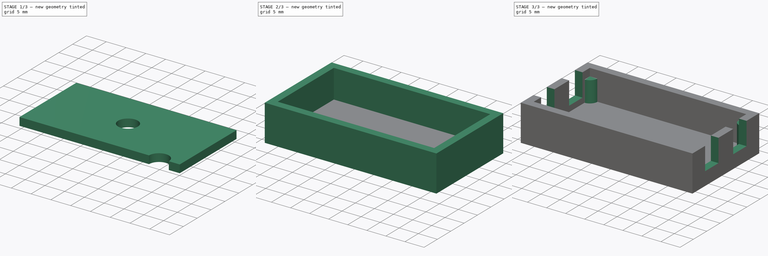
[diagram: build sequence overview — one tinted view per stage of 3, left to right]
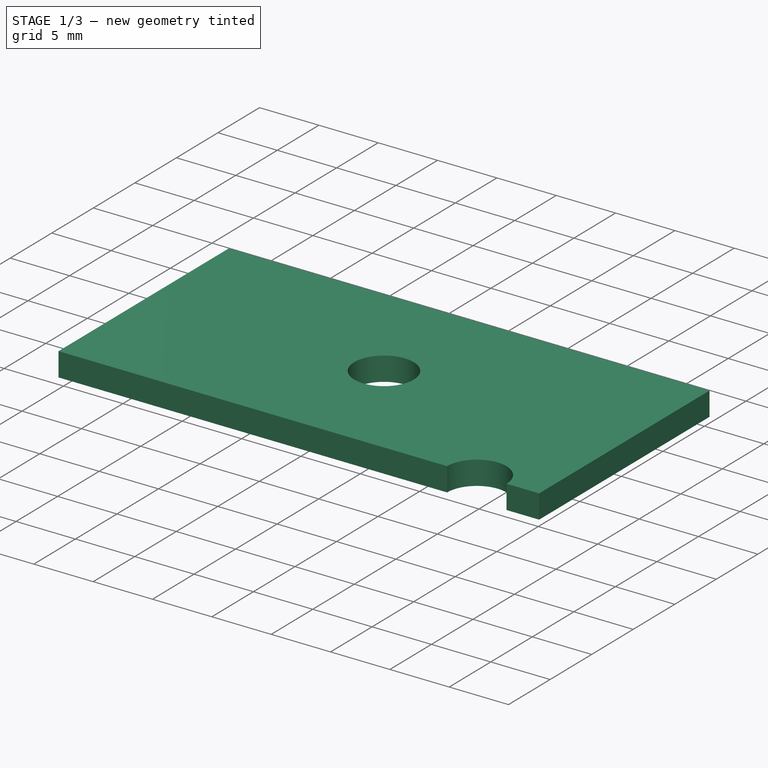
[diagram: stage 1 of 3 — iso view after this stage's code; geometry added in this stage tinted green]
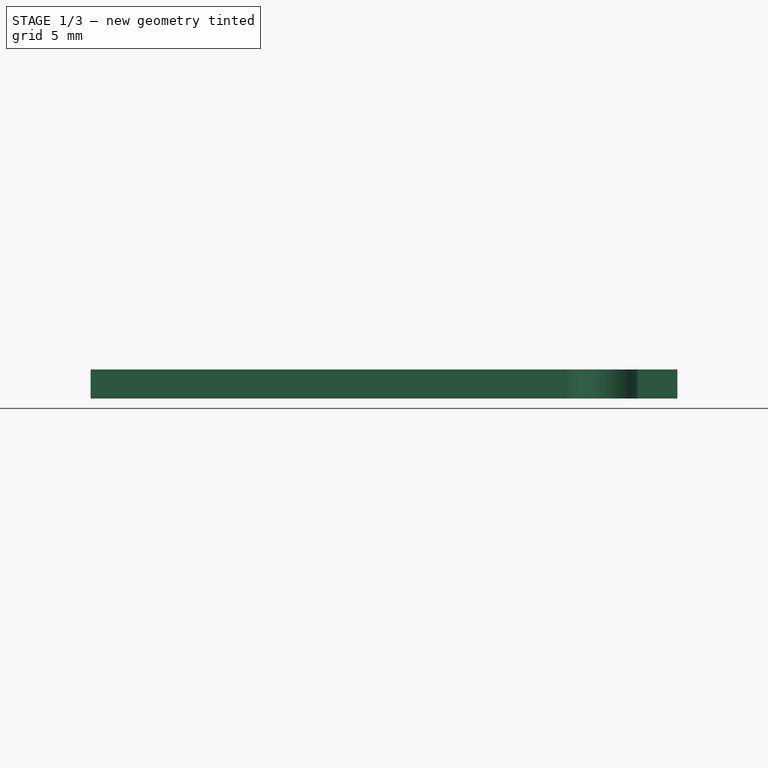
[diagram: stage 1 of 3 — front view after this stage's code; geometry added in this stage tinted green]
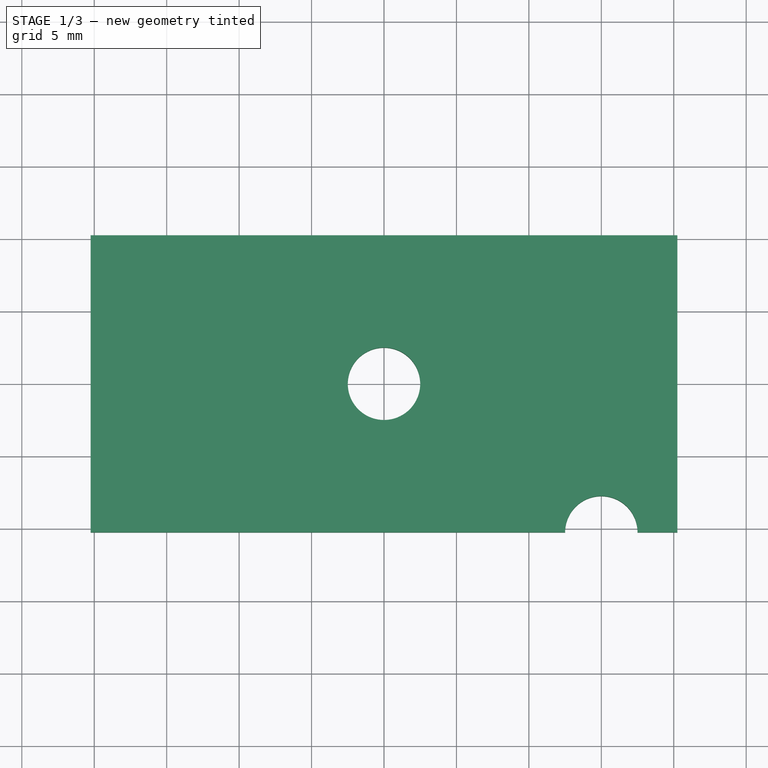
[diagram: stage 1 of 3 — top view after this stage's code; geometry added in this stage tinted green]
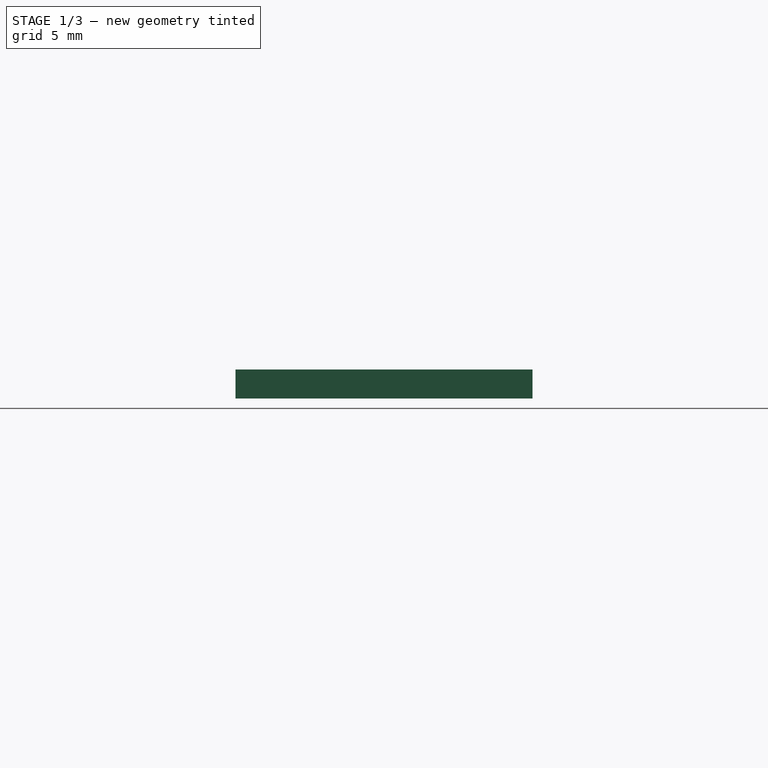
[diagram: stage 1 of 3 — right view after this stage's code; geometry added in this stage tinted green]
FCSTD DOCUMENT  (FreeCAD 0.20R29603 (Git))
Label: frame-circuit
License: All rights reserved
LicenseURL: http://en.wikipedia.org/wiki/All_rights_reserved
objects: Sketcher::SketchObject×7, PartDesign::Pocket×4, PartDesign::Pad×3, PartDesign::Body×2
note: 23 computed .brp shape members not serialized (recipe doc carries the construction recipe); baked Part::Feature solids carry a one-line shape summary decoded from their .brp

FEATURE [PartDesign::Body] Body
  Group = -> [Sketch,Pad,Sketch001,Pocket,Sketch002,Pocket001,Sketch003,Pocket002,Sketch004,Pad001]
  Origin = -> Origin
  Tip = -> Pad001
FEATURE [Sketcher::SketchObject] Sketch005
  FullyConstrained = true
  MapMode = 5
  Support = -> [XY_Plane001]
  sketch-geometry (6):
    g0: LineSegment StartX=-20.25 StartY=10.25 StartZ=0 EndX=20.25 EndY=10.25 EndZ=0
    g1: LineSegment StartX=20.25 StartY=10.25 StartZ=0 EndX=20.25 EndY=-10.25 EndZ=0
    g2: LineSegment StartX=20.25 StartY=-10.25 StartZ=0 EndX=17.5 EndY=-10.25 EndZ=0
    g3: LineSegment StartX=-20.25 StartY=-10.25 StartZ=0 EndX=-20.25 EndY=10.25 EndZ=0
    g4: ArcOfCircle CenterX=15 CenterY=-10.25 CenterZ=0 NormalX=0 NormalY=0 NormalZ=1 AngleXU=0 Radius=2.5 StartAngle=2.3e-15 EndAngle=3.14159
    g5: LineSegment StartX=12.5 StartY=-10.25 StartZ=0 EndX=-20.25 EndY=-10.25 EndZ=0
  constraints (18):
    c: Coincident(g0,g1)
    c: Coincident(g1,g2)
    c: Coincident(g5,g3)
    c: Coincident(g3,g0)
    c: Horizontal(g0)
    c: Horizontal(g2)
    c: Vertical(g1)
    c: Vertical(g3)
    c: Symmetric(g0,g1,g-1)
    c: DistanceY(g5,g0) = 20.5
    c: DistanceX(g0,g0) = 40.5
    c: PointOnObject(g4,g2)
    c: Diameter(g4) = 5
    c: DistanceX(g4,g1) = 2.75
    c: Coincident(g2,g4)
    c: Coincident(g5,g4)
    c: Horizontal(g4,g2)
    c: Horizontal(g3,g4)
FEATURE [PartDesign::Pad] Pad002
  Direction = (0,0,1)
  Length = 2
  Length2 = 10
  Profile = -> Sketch005
  ReferenceAxis = -> Sketch005 [N_Axis]
  Type = 0
FEATURE [Sketcher::SketchObject] Sketch006
  FullyConstrained = true
  MapMode = 5
  Placement = pos=(0,0,2) rot=(0,0,1;0rad)
  Support = -> [Pad002]
  sketch-geometry (1):
    g0: Circle CenterX=0 CenterY=0 CenterZ=0 NormalX=0 NormalY=0 NormalZ=1 AngleXU=0 Radius=2.5
  constraints (2):
    c: Coincident(g0,g-1)
    c: Diameter(g0) = 5
FEATURE [PartDesign::Pocket] Pocket003
  BaseFeature = -> Pad002
  Direction = (0,0,-1)
  Length = 5
  Length2 = 5
  Profile = -> Sketch006
  ReferenceAxis = -> Sketch006 [N_Axis]
  Type = 1
FEATURE [PartDesign::Body] Body001
  Group = -> [Sketch005,Pad002,Sketch006,Pocket003]
  Origin = -> Origin001
  Tip = -> Pocket003
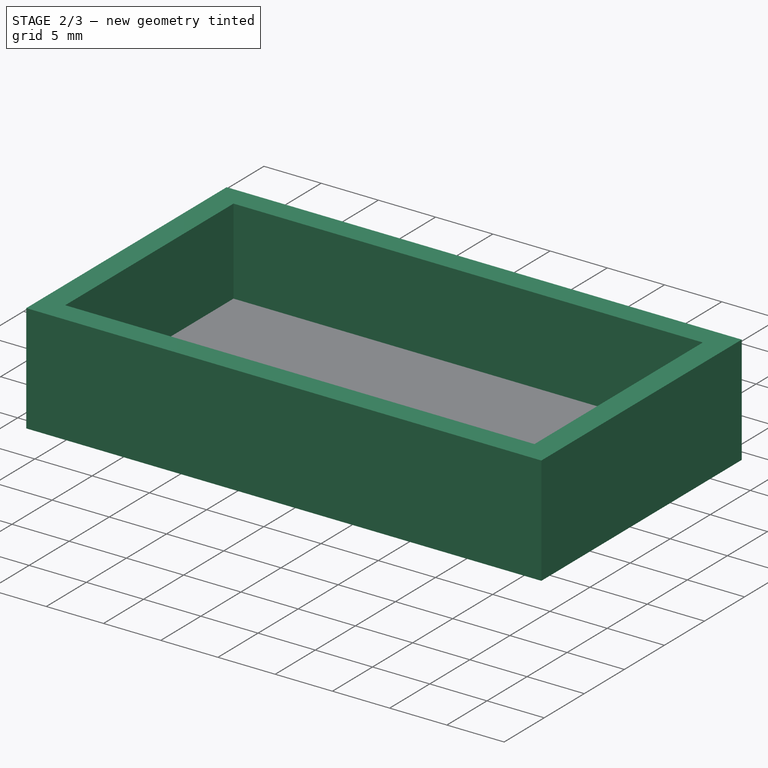
[diagram: stage 2 of 3 — iso view after this stage's code; geometry added in this stage tinted green]
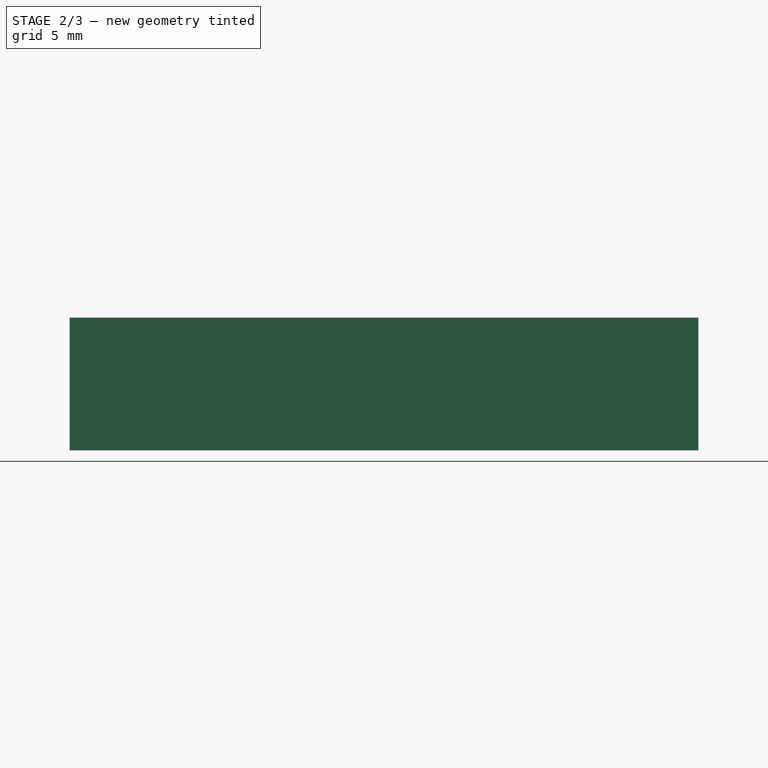
[diagram: stage 2 of 3 — front view after this stage's code; geometry added in this stage tinted green]
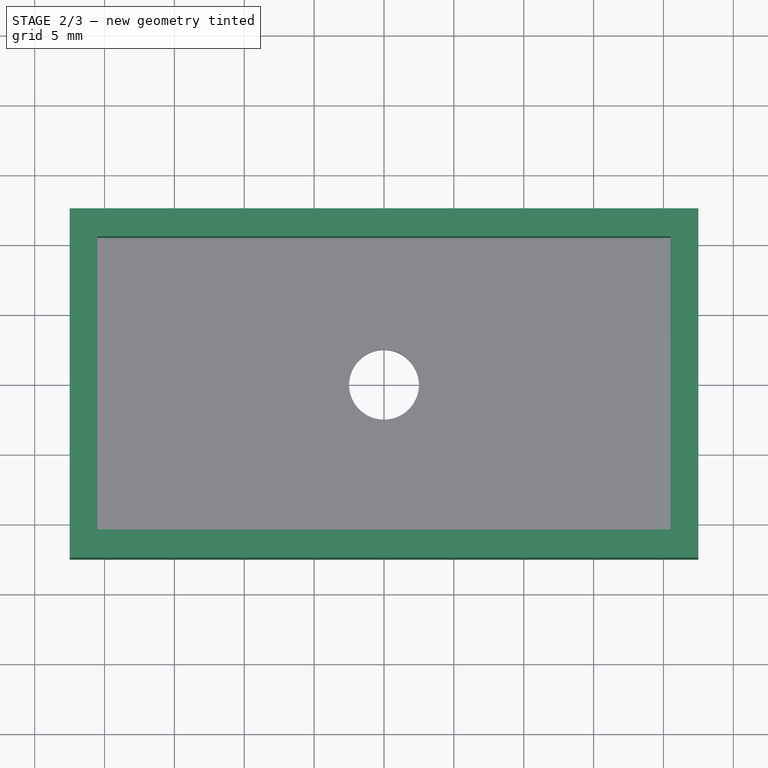
[diagram: stage 2 of 3 — top view after this stage's code; geometry added in this stage tinted green]
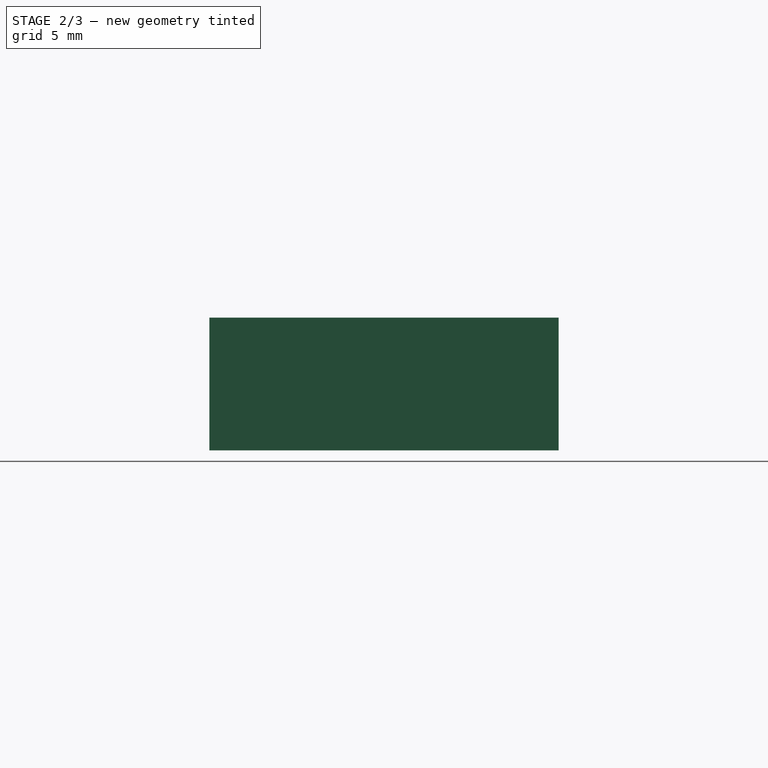
[diagram: stage 2 of 3 — right view after this stage's code; geometry added in this stage tinted green]
FEATURE [Sketcher::SketchObject] Sketch  label="SketchBase"
  FullyConstrained = true
  MapMode = 5
  Support = -> [XY_Plane]
  sketch-geometry (4):
    g0: LineSegment StartX=-22.5 StartY=12.5 StartZ=0 EndX=22.5 EndY=12.5 EndZ=0
    g1: LineSegment StartX=22.5 StartY=12.5 StartZ=0 EndX=22.5 EndY=-12.5 EndZ=0
    g2: LineSegment StartX=22.5 StartY=-12.5 StartZ=0 EndX=-22.5 EndY=-12.5 EndZ=0
    g3: LineSegment StartX=-22.5 StartY=-12.5 StartZ=0 EndX=-22.5 EndY=12.5 EndZ=0
  constraints (11):
    c: Coincident(g0,g1)
    c: Coincident(g1,g2)
    c: Coincident(g2,g3)
    c: Coincident(g3,g0)
    c: Horizontal(g0)
    c: Horizontal(g2)
    c: Vertical(g1)
    c: Vertical(g3)
    c: Symmetric(g0,g1,g-1)
    c: DistanceX(g2,g1) = 45
    c: DistanceY(g2,g0) = 25
FEATURE [PartDesign::Pad] Pad
  Direction = (0,0,1)
  Length = 9.5
  Length2 = 10
  Profile = -> Sketch
  ReferenceAxis = -> Sketch [N_Axis]
  Type = 0
FEATURE [Sketcher::SketchObject] Sketch001
  ExternalGeometry = -> [Pad]
  FullyConstrained = true
  MapMode = 5
  Placement = pos=(0,0,9.5) rot=(0,0,1;0rad)
  Support = -> [Pad]
  sketch-geometry (4):
    g0: LineSegment StartX=-20.5 StartY=10.5 StartZ=0 EndX=20.5 EndY=10.5 EndZ=0
    g1: LineSegment StartX=20.5 StartY=10.5 StartZ=0 EndX=20.5 EndY=-10.5 EndZ=0
    g2: LineSegment StartX=20.5 StartY=-10.5 StartZ=0 EndX=-20.5 EndY=-10.5 EndZ=0
    g3: LineSegment StartX=-20.5 StartY=-10.5 StartZ=0 EndX=-20.5 EndY=10.5 EndZ=0
  constraints (12):
    c: Coincident(g0,g1)
    c: Coincident(g1,g2)
    c: Coincident(g2,g3)
    c: Coincident(g3,g0)
    c: Horizontal(g0)
    c: Horizontal(g2)
    c: Vertical(g1)
    c: Vertical(g3)
    c: DistanceX(g-4,g0) = 2
    c: DistanceY(g-6,g2) = 2
    c: DistanceX(g0,g-5) = 2
    c: DistanceY(g0,g-4) = 2
FEATURE [PartDesign::Pocket] Pocket
  BaseFeature = -> Pad
  Direction = (0,0,-1)
  Length = 7.5
  Length2 = 5
  Profile = -> Sketch001
  ReferenceAxis = -> Sketch001 [N_Axis]
  Type = 0
FEATURE [Sketcher::SketchObject] Sketch002
  FullyConstrained = true
  MapMode = 5
  Placement = pos=(0,0,2) rot=(0,0,1;0rad)
  Support = -> [Pocket]
  sketch-geometry (1):
    g0: Circle CenterX=0 CenterY=0 CenterZ=0 NormalX=0 NormalY=0 NormalZ=1 AngleXU=0 Radius=2.5
  constraints (2):
    c: Coincident(g0,g-1)
    c: Diameter(g0) = 5
FEATURE [PartDesign::Pocket] Pocket001
  BaseFeature = -> Pocket
  Direction = (0,0,-1)
  Length = 5
  Length2 = 5
  Profile = -> Sketch002
  ReferenceAxis = -> Sketch002 [N_Axis]
  Type = 1
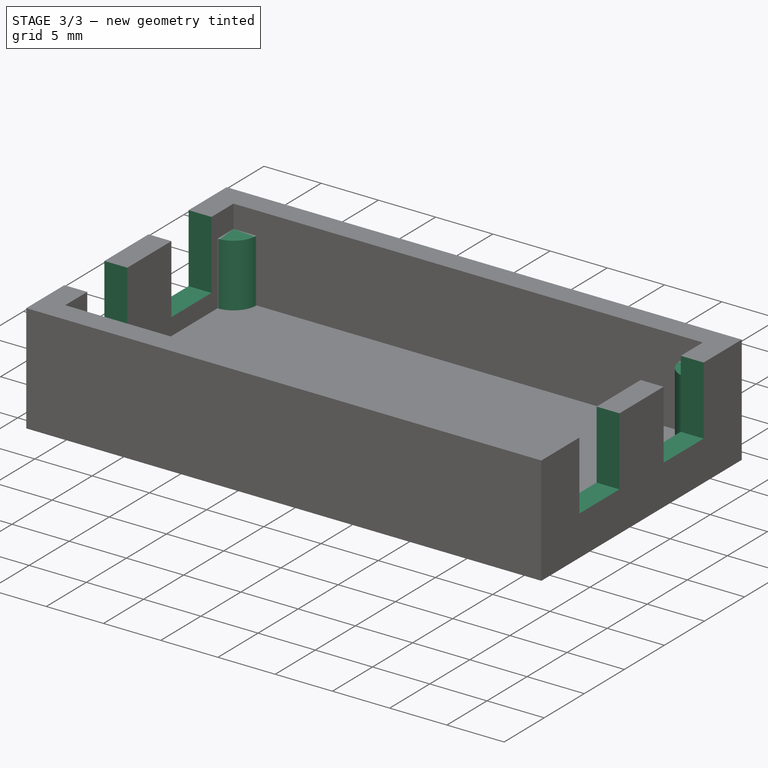
[diagram: stage 3 of 3 — iso view after this stage's code; geometry added in this stage tinted green]
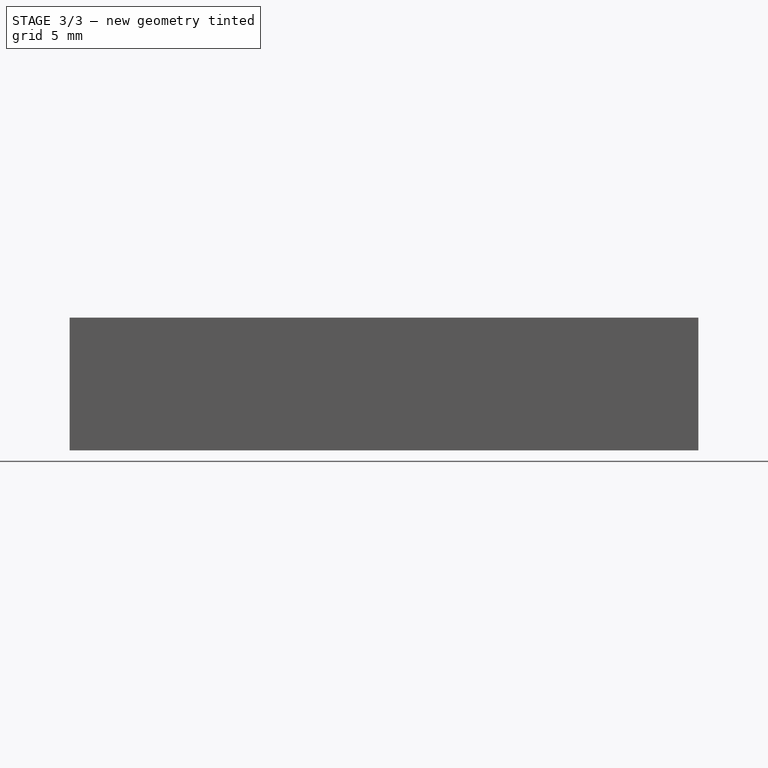
[diagram: stage 3 of 3 — front view after this stage's code; geometry added in this stage tinted green]
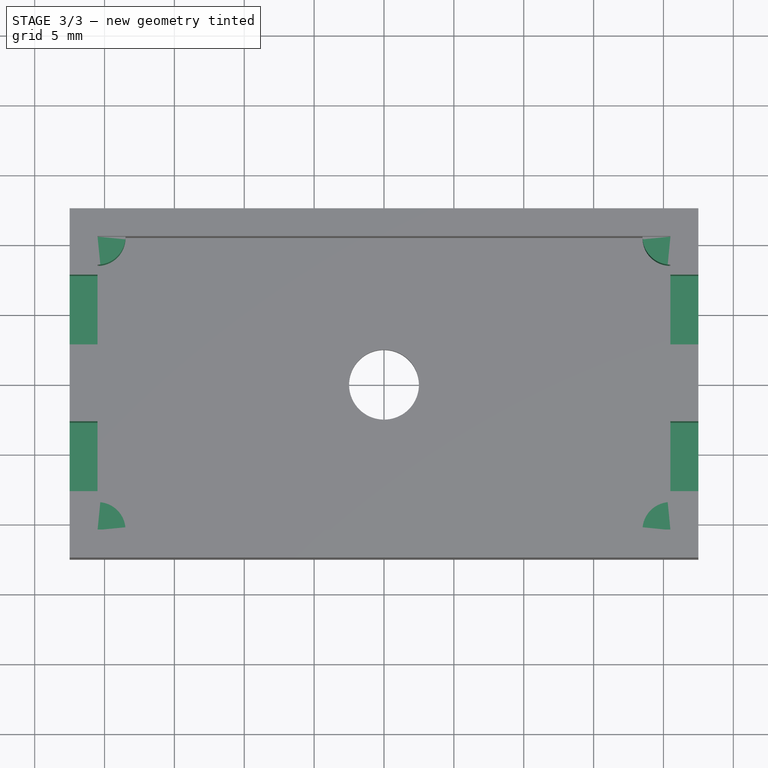
[diagram: stage 3 of 3 — top view after this stage's code; geometry added in this stage tinted green]
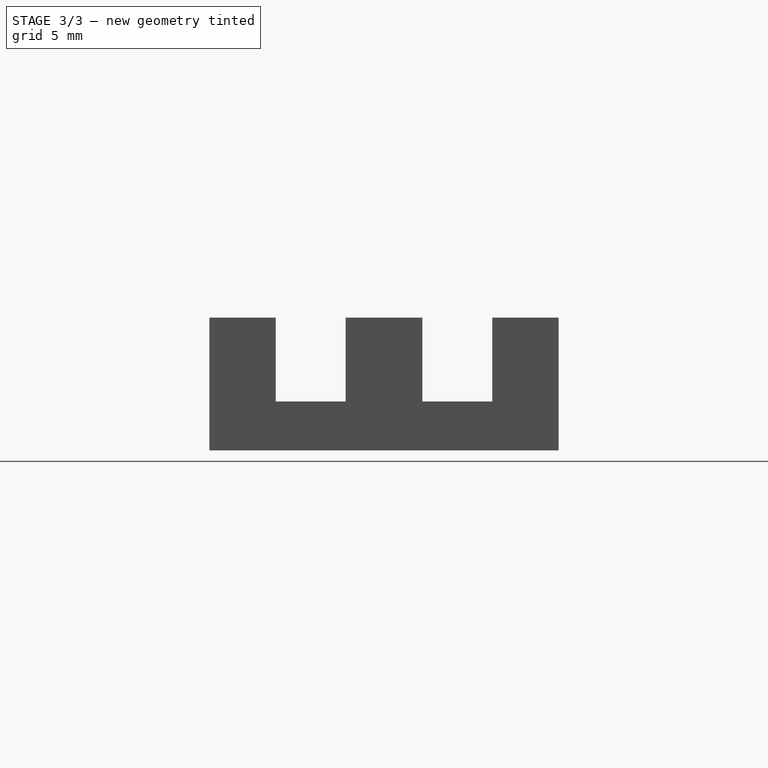
[diagram: stage 3 of 3 — right view after this stage's code; geometry added in this stage tinted green]
FEATURE [Sketcher::SketchObject] Sketch003
  ExternalGeometry = -> [Pocket001]
  FullyConstrained = true
  MapMode = 5
  Placement = pos=(0,0,9.5) rot=(0,0,1;0rad)
  Support = -> [Pocket001]
  sketch-geometry (16):
    g0: LineSegment StartX=-22.5 StartY=7.75 StartZ=0 EndX=-20.5 EndY=7.75 EndZ=0
    g1: LineSegment StartX=-20.5 StartY=7.75 StartZ=0 EndX=-20.5 EndY=2.75 EndZ=0
    g2: LineSegment StartX=-20.5 StartY=2.75 StartZ=0 EndX=-22.5 EndY=2.75 EndZ=0
    g3: LineSegment StartX=-22.5 StartY=2.75 StartZ=0 EndX=-22.5 EndY=7.75 EndZ=0
    g4: LineSegment StartX=-22.5 StartY=-2.75 StartZ=0 EndX=-22.5 EndY=-7.75 EndZ=0
    g5: LineSegment StartX=-20.5 StartY=-7.75 StartZ=0 EndX=-20.5 EndY=-2.75 EndZ=0
    g6: LineSegment StartX=-22.5 StartY=-7.75 StartZ=0 EndX=-20.5 EndY=-7.75 EndZ=0
    g7: LineSegment StartX=-20.5 StartY=-2.75 StartZ=0 EndX=-22.5 EndY=-2.75 EndZ=0
    g8: LineSegment StartX=22.5 StartY=7.75 StartZ=0 EndX=20.5 EndY=7.75 EndZ=0
    g9: LineSegment StartX=20.5 StartY=7.75 StartZ=0 EndX=20.5 EndY=2.75 EndZ=0
    g10: LineSegment StartX=22.5 StartY=2.75 StartZ=0 EndX=22.5 EndY=7.75 EndZ=0
    g11: LineSegment StartX=20.5 StartY=2.75 StartZ=0 EndX=22.5 EndY=2.75 EndZ=0
    g12: LineSegment StartX=20.5 StartY=-2.75 StartZ=0 EndX=22.5 EndY=-2.75 EndZ=0
    g13: LineSegment StartX=20.5 StartY=-7.75 StartZ=0 EndX=20.5 EndY=-2.75 EndZ=0
    g14: LineSegment StartX=22.5 StartY=-2.75 StartZ=0 EndX=22.5 EndY=-7.75 EndZ=0
    g15: LineSegment StartX=22.5 StartY=-7.75 StartZ=0 EndX=20.5 EndY=-7.75 EndZ=0
  constraints (48):
    c: Coincident(g0,g1)
    c: Coincident(g1,g2)
    c: Coincident(g2,g3)
    c: Coincident(g3,g0)
    c: Horizontal(g0)
    c: Horizontal(g2)
    c: Vertical(g1)
    c: Vertical(g3)
    c: PointOnObject(g0,g-6)
    c: PointOnObject(g1,g-5)
    c: DistanceY(g2,g0) = 5
    c: DistanceY(g0,g-5) = 2.75
    c: Coincident(g6,g5)
    c: Coincident(g5,g7)
    c: Coincident(g7,g4)
    c: Coincident(g4,g6)
    c: Horizontal(g6)
    c: Horizontal(g7)
    c: Vertical(g5)
    c: Vertical(g4)
    c: PointOnObject(g4,g-6)
    c: PointOnObject(g5,g-5)
    c: DistanceY(g4,g4) = 5
    c: DistanceY(g-5,g5) = 2.75
    c: Coincident(g8,g9)
    c: Coincident(g9,g11)
    c: Coincident(g11,g10)
    c: Coincident(g10,g8)
    c: Horizontal(g8)
    c: Horizontal(g11)
    c: Vertical(g9)
    c: Vertical(g10)
    c: Coincident(g15,g13)
    c: Coincident(g13,g12)
    c: Coincident(g12,g14)
    c: Coincident(g14,g15)
    c: Horizontal(g15)
    c: Horizontal(g12)
    c: Vertical(g13)
    c: Vertical(g14)
    c: PointOnObject(g8,g-3)
    c: PointOnObject(g8,g-4)
    c: PointOnObject(g12,g-3)
    c: PointOnObject(g12,g-4)
    c: DistanceY(g14,g12) = 5
    c: DistanceY(g-3,g13) = 2.75
    c: DistanceY(g10,g8) = 5
    c: DistanceY(g8,g-3) = 2.75
FEATURE [PartDesign::Pocket] Pocket002
  BaseFeature = -> Pocket001
  Direction = (0,0,-1)
  Length = 6
  Length2 = 5
  Profile = -> Sketch003
  ReferenceAxis = -> Sketch003 [N_Axis]
  Type = 0
FEATURE [Sketcher::SketchObject] Sketch004
  ExternalGeometry = -> [Pocket002]
  FullyConstrained = true
  MapMode = 5
  Placement = pos=(0,0,2) rot=(0,0,1;0rad)
  Support = -> [Pocket002]
  sketch-geometry (12):
    g0: ArcOfCircle CenterX=-20.5 CenterY=10.5 CenterZ=0 NormalX=0 NormalY=0 NormalZ=1 AngleXU=0 Radius=2 StartAngle=4.71239 EndAngle=6.28319
    g1: ArcOfCircle CenterX=-20.5 CenterY=-10.5 CenterZ=0 NormalX=0 NormalY=0 NormalZ=1 AngleXU=0 Radius=2 StartAngle=0 EndAngle=1.5708
    g2: ArcOfCircle CenterX=20.5 CenterY=-10.5 CenterZ=0 NormalX=0 NormalY=0 NormalZ=1 AngleXU=0 Radius=2 StartAngle=1.5708 EndAngle=3.14159
    g3: ArcOfCircle CenterX=20.5 CenterY=10.5 CenterZ=0 NormalX=0 NormalY=0 NormalZ=1 AngleXU=0 Radius=2 StartAngle=3.14159 EndAngle=4.71239
    g4: LineSegment StartX=-18.5 StartY=10.5 StartZ=0 EndX=-20.5 EndY=10.5 EndZ=0
    g5: LineSegment StartX=-20.5 StartY=10.5 StartZ=0 EndX=-20.5 EndY=8.5 EndZ=0
    g6: LineSegment StartX=-20.5 StartY=-8.5 StartZ=0 EndX=-20.5 EndY=-10.5 EndZ=0
    g7: LineSegment StartX=-20.5 StartY=-10.5 StartZ=0 EndX=-18.5 EndY=-10.5 EndZ=0
    g8: LineSegment StartX=18.5 StartY=-10.5 StartZ=0 EndX=20.5 EndY=-10.5 EndZ=0
    g9: LineSegment StartX=20.5 StartY=-10.5 StartZ=0 EndX=20.5 EndY=-8.5 EndZ=0
    g10: LineSegment StartX=20.5 StartY=8.5 StartZ=0 EndX=20.5 EndY=10.5 EndZ=0
    g11: LineSegment StartX=20.5 StartY=10.5 StartZ=0 EndX=18.5 EndY=10.5 EndZ=0
  constraints (33):
    c: Coincident(g0,g-4)
    c: PointOnObject(g0,g-4)
    c: PointOnObject(g0,g-3)
    c: Radius(g0) = 2
    c: Coincident(g1,g-6)
    c: PointOnObject(g1,g-5)
    c: PointOnObject(g1,g-6)
    c: PointOnObject(g2,g-6)
    c: Coincident(g2,g-7)
    c: PointOnObject(g2,g-7)
    c: PointOnObject(g3,g-8)
    c: PointOnObject(g3,g-4)
    c: Coincident(g3,g-8)
    c: Equal(g0,g1)
    c: Equal(g1,g2)
    c: Equal(g2,g3)
    c: PointOnObject(g4,g0)
    c: Coincident(g4,g0)
    c: Horizontal(g4)
    c: Coincident(g5,g0)
    c: Coincident(g5,g0)
    c: Coincident(g6,g1)
    c: Coincident(g6,g1)
    c: Coincident(g7,g1)
    c: Coincident(g7,g1)
    c: Coincident(g8,g2)
    c: Coincident(g8,g2)
    c: Coincident(g9,g2)
    c: Coincident(g9,g2)
    c: Coincident(g10,g3)
    c: Coincident(g10,g3)
    c: Coincident(g11,g3)
    c: Coincident(g11,g3)
FEATURE [PartDesign::Pad] Pad001
  BaseFeature = -> Pocket002
  Direction = (0,0,1)
  Length = 10
  Length2 = 10
  Offset = -2
  Profile = -> Sketch004
  ReferenceAxis = -> Sketch004 [N_Axis]
  Type = 3
  UpToFace = -> Pocket002 [Face5]
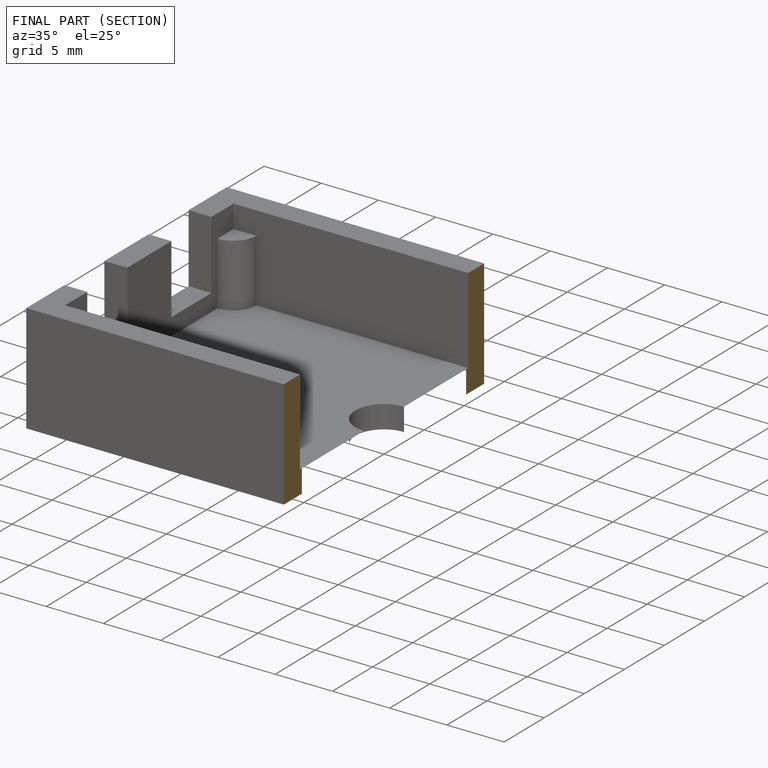
[diagram: finished part — half-section view (interior)]
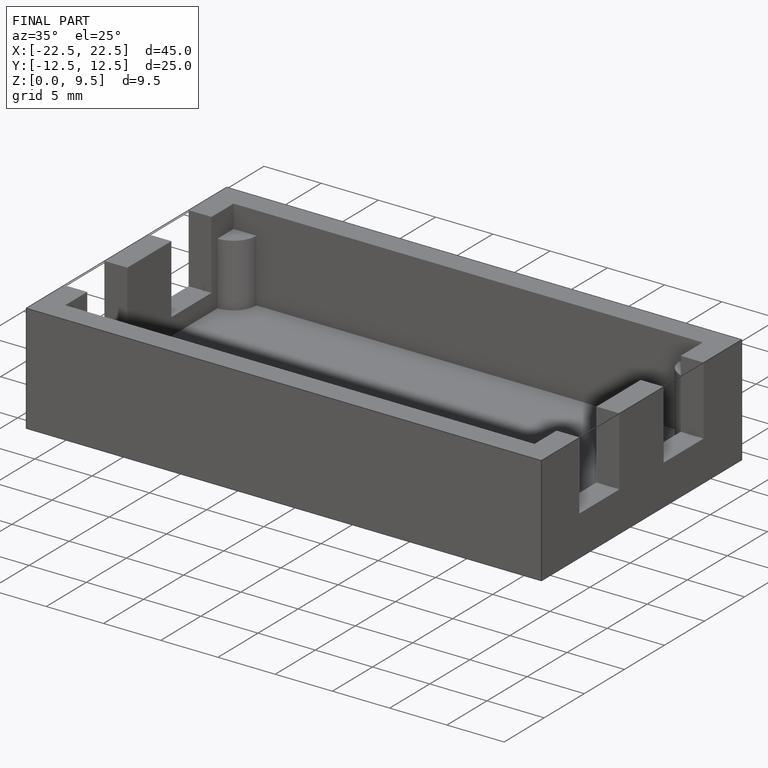
[diagram: finished part — iso view with bounding-box wireframe]
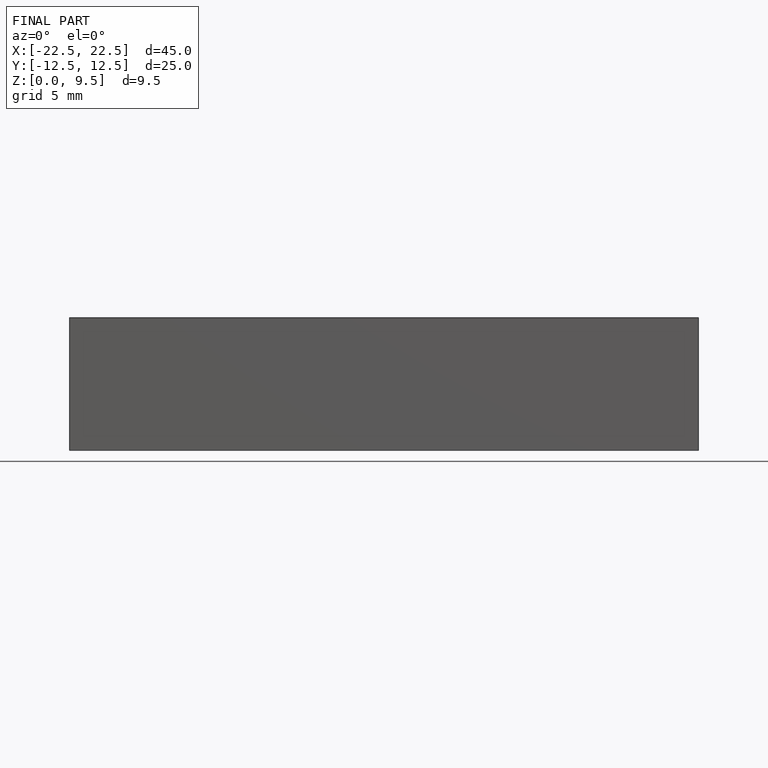
[diagram: finished part — front view with bounding-box wireframe]
